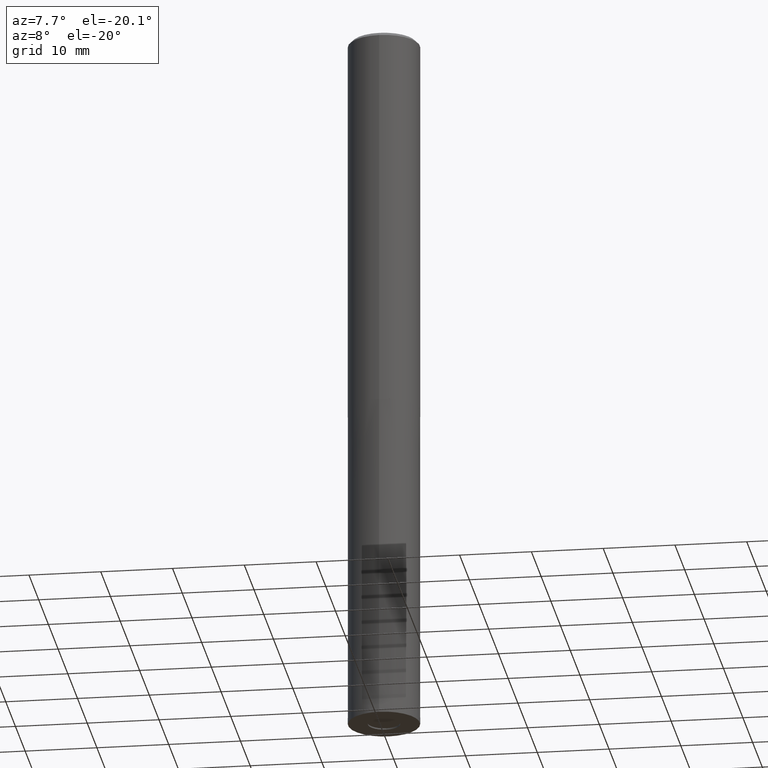
[diagram: clean part render]
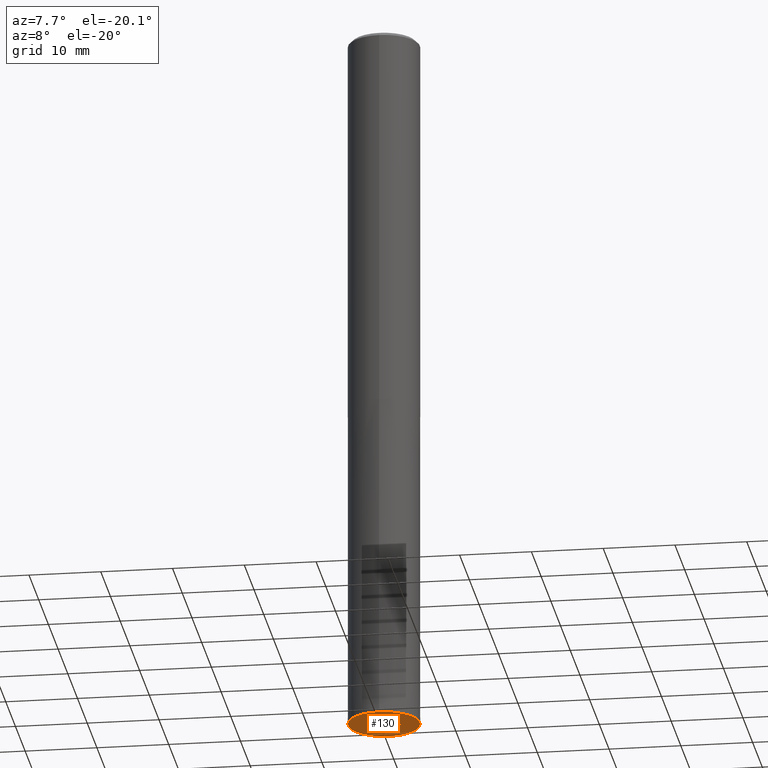
[diagram: same view with one face highlighted and labeled with its STEP entity id]
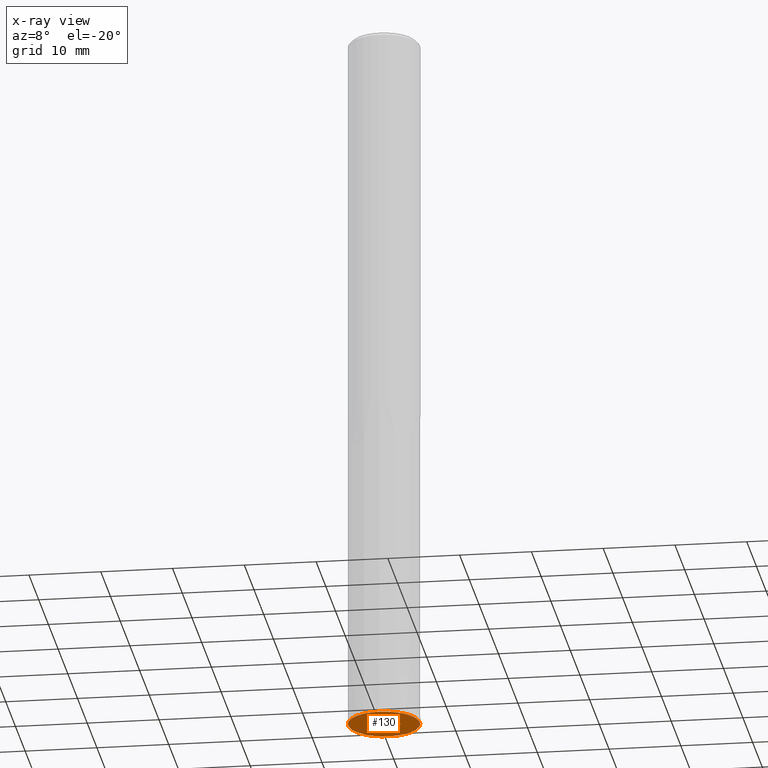
[diagram: x-ray of the same camera — body ghosted, the highlighted face saturated]
A machine part, auxiliary view. The second image highlights one B-rep face of the part: STEP entity #130.
The next image is the same camera in x-ray: the body ghosted, the highlighted face saturated — about 0% of this face is hidden behind the body in this view.
In plain terms, the highlighted planar face has unit normal (0, 0, -1).
Its self-contained STEP definition (entity closure, byte-faithful):
#110=VERTEX_POINT('',#258);
#112=EDGE_CURVE('',#188,#110,#260,.T.);
#130=ADVANCED_FACE('',(#282,#283),#284,.T.);
#136=VERTEX_POINT('',#290);
#140=VERTEX_POINT('',#294);
#188=VERTEX_POINT('',#349);
#192=EDGE_CURVE('',#140,#136,#353,.T.);
#208=EDGE_CURVE('',#110,#188,#370,.T.);
#220=EDGE_CURVE('',#136,#140,#383,.T.);
#258=CARTESIAN_POINT('',(2.75536429610035E-016,-2.25,-100.0));
#260=CIRCLE('',#417,2.25);
#282=FACE_OUTER_BOUND('',#445,.T.);
#283=FACE_BOUND('',#446,.T.);
#284=PLANE('',#447);
#290=CARTESIAN_POINT('',(0.0,5.0,-100.0));
#294=CARTESIAN_POINT('',(6.12303176911189E-016,-5.0,-100.0));
#349=CARTESIAN_POINT('',(0.0,2.25,-100.0));
#353=CIRCLE('',#530,5.0);
#370=CIRCLE('',#555,2.25);
#383=CIRCLE('',#574,5.0);
#417=AXIS2_PLACEMENT_3D('',#605,#606,#607);
#445=EDGE_LOOP('',(#636,#637));
#446=EDGE_LOOP('',(#638,#639));
#447=AXIS2_PLACEMENT_3D('',#640,#641,#642);
#530=AXIS2_PLACEMENT_3D('',#724,#725,#726);
#555=AXIS2_PLACEMENT_3D('',#741,#742,#743);
#574=AXIS2_PLACEMENT_3D('',#755,#756,#757);
#605=CARTESIAN_POINT('',(0.0,0.0,-100.0));
#606=DIRECTION('',(0.0,0.0,-1.0));
#607=DIRECTION('',(0.0,1.0,0.0));
#636=ORIENTED_EDGE('',*,*,#220,.T.);
#637=ORIENTED_EDGE('',*,*,#192,.T.);
#638=ORIENTED_EDGE('',*,*,#112,.F.);
#639=ORIENTED_EDGE('',*,*,#208,.F.);
#640=CARTESIAN_POINT('',(0.0,3.6225,-100.0));
#641=DIRECTION('',(0.0,0.0,-1.0));
#642=DIRECTION('',(0.0,1.0,0.0));
#724=CARTESIAN_POINT('',(0.0,0.0,-100.0));
#725=DIRECTION('',(0.0,0.0,-1.0));
#726=DIRECTION('',(0.0,1.0,0.0));
#741=CARTESIAN_POINT('',(0.0,0.0,-100.0));
#742=DIRECTION('',(0.0,0.0,-1.0));
#743=DIRECTION('',(0.0,1.0,0.0));
#755=CARTESIAN_POINT('',(0.0,0.0,-100.0));
#756=DIRECTION('',(0.0,0.0,-1.0));
#757=DIRECTION('',(0.0,1.0,0.0));